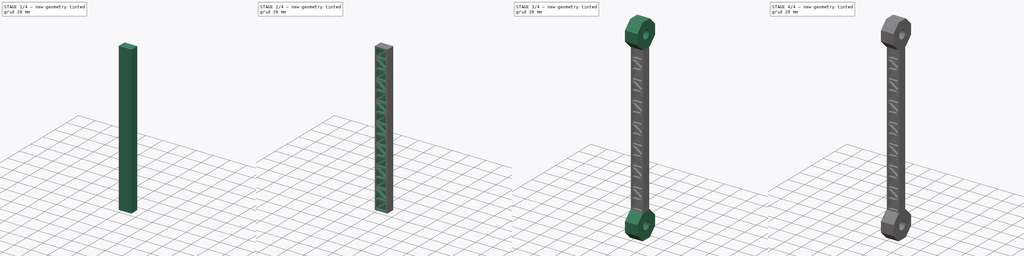
[diagram: build sequence overview — one tinted view per stage of 4, left to right]
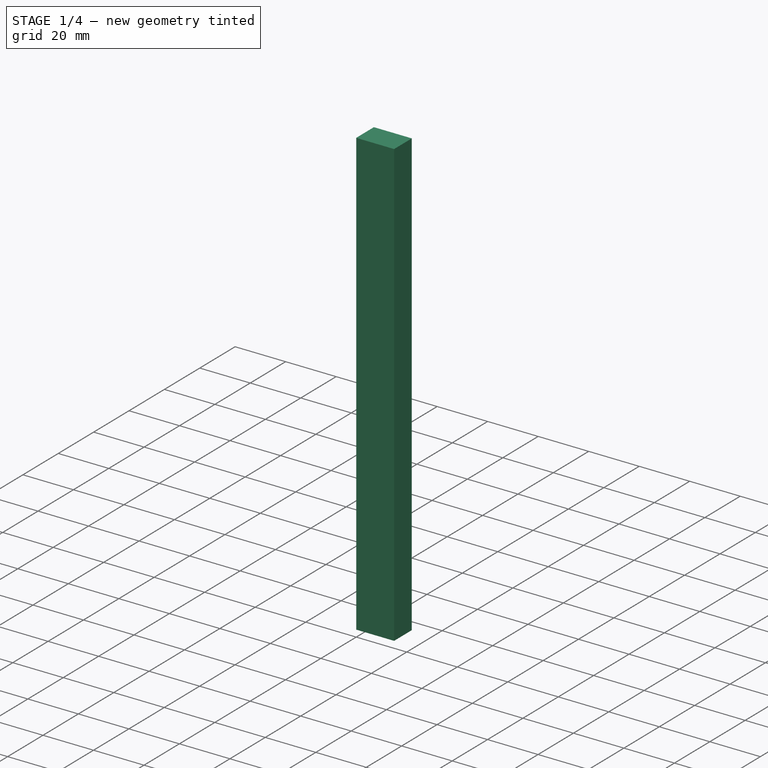
[diagram: stage 1 of 4 — iso view after this stage's code; geometry added in this stage tinted green]
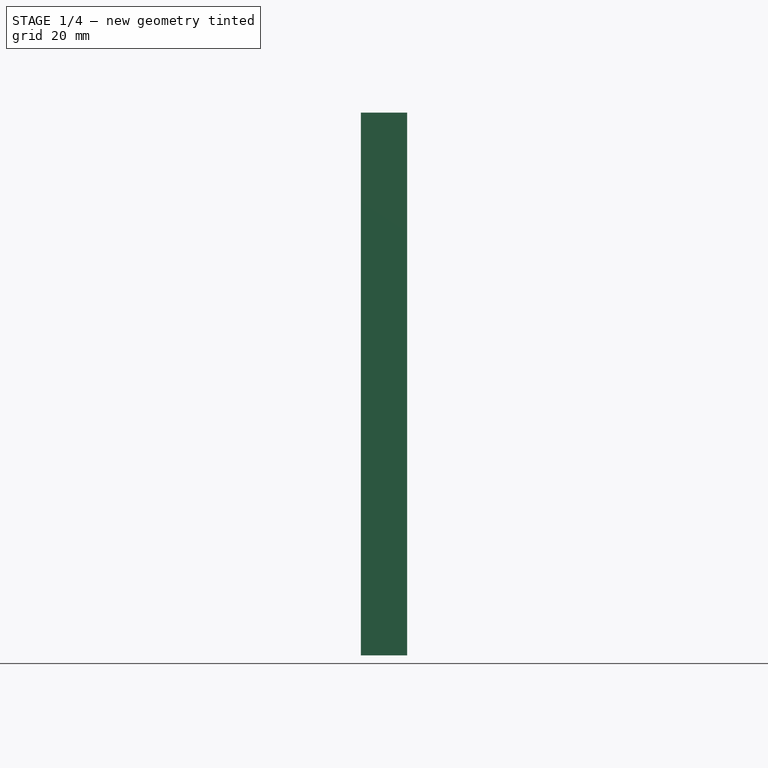
[diagram: stage 1 of 4 — front view after this stage's code; geometry added in this stage tinted green]
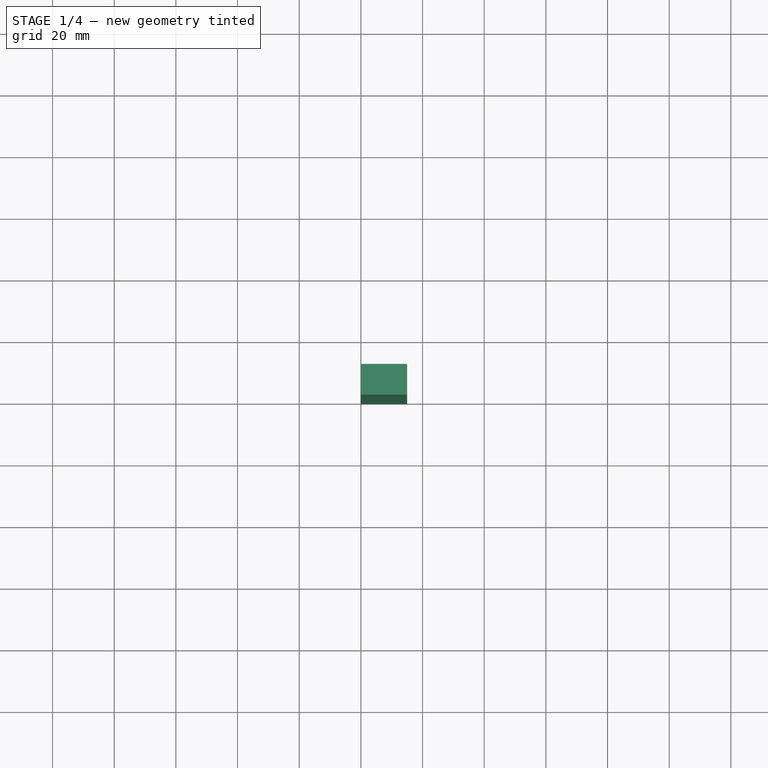
[diagram: stage 1 of 4 — top view after this stage's code; geometry added in this stage tinted green]
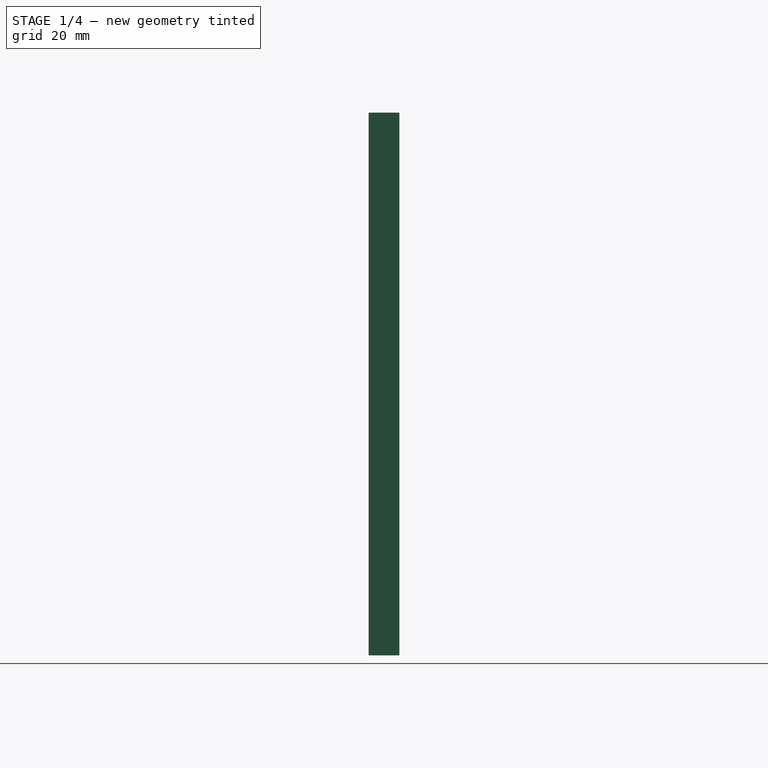
[diagram: stage 1 of 4 — right view after this stage's code; geometry added in this stage tinted green]
FCSTD DOCUMENT  (FreeCAD 0.19R24267 +148 (Git))
Label: windSensorHolder_edit
License: All rights reserved
LicenseURL: http://en.wikipedia.org/wiki/All_rights_reserved
objects: Sketcher::SketchObject×6, PartDesign::Pocket×4, PartDesign::Pad×2, PartDesign::LinearPattern×2, PartDesign::Chamfer×2, PartDesign::Body×1
note: 25 computed .brp shape members not serialized (recipe doc carries the construction recipe); baked Part::Feature solids carry a one-line shape summary decoded from their .brp

FEATURE [Sketcher::SketchObject] Sketch
  FullyConstrained = true
  MapMode = 5
  Support = -> [XY_Plane]
  sketch-geometry (4):
    g0: LineSegment StartX=0 StartY=0 StartZ=0 EndX=15 EndY=0 EndZ=0
    g1: LineSegment StartX=15 StartY=0 StartZ=0 EndX=15 EndY=10 EndZ=0
    g2: LineSegment StartX=15 StartY=10 StartZ=0 EndX=0 EndY=10 EndZ=0
    g3: LineSegment StartX=0 StartY=10 StartZ=0 EndX=0 EndY=0 EndZ=0
  constraints (11):
    c: Coincident(g0,g1)
    c: Coincident(g1,g2)
    c: Coincident(g2,g3)
    c: Coincident(g3,g0)
    c: Horizontal(g0)
    c: Horizontal(g2)
    c: Vertical(g1)
    c: Vertical(g3)
    c: Coincident(g0,g-1)
    c: DistanceX(g2,g2) = 15
    c: DistanceY(g1,g1) = 10
FEATURE [PartDesign::Pad] Pad
  Direction = (1,1,1)
  Length = 176
  Length2 = 100
  Profile = -> Sketch
  Type = 0
FEATURE [Sketcher::SketchObject] Sketch001
  FullyConstrained = true
  MapMode = 5
  Placement = pos=(0,10,0) rot=(0,0.707107,0.707107;3.14159rad)
  Support = -> [Pad]
  sketch-geometry (22):
    g0: LineSegment StartX=-13 StartY=1.5 StartZ=0 EndX=-2 EndY=1.5 EndZ=0
    g1: LineSegment StartX=-2 StartY=1.5 StartZ=0 EndX=-2 EndY=11.5 EndZ=0
    g2: LineSegment StartX=-2 StartY=11.5 StartZ=0 EndX=-13 EndY=11.5 EndZ=0
    g3: LineSegment StartX=-13 StartY=11.5 StartZ=0 EndX=-13 EndY=1.5 EndZ=0
    g4: LineSegment StartX=-2 StartY=1.5 StartZ=0 EndX=-13 EndY=1.5 EndZ=0
    g5: LineSegment StartX=-13 StartY=1.5 StartZ=0 EndX=-2 EndY=9.5 EndZ=0
    g6: LineSegment StartX=-2 StartY=9.5 StartZ=0 EndX=-2 EndY=1.5 EndZ=0
    g7: LineSegment StartX=-13 StartY=11.5 StartZ=0 EndX=-13 EndY=3.5 EndZ=0
    g8: LineSegment StartX=-13 StartY=11.5 StartZ=0 EndX=-2 EndY=11.5 EndZ=0
    g9: LineSegment StartX=-13 StartY=3.5 StartZ=0 EndX=-2 EndY=11.5 EndZ=0
    g10: LineSegment StartX=-2 StartY=13 StartZ=0 EndX=-13 EndY=13 EndZ=0
    g11: LineSegment StartX=-13 StartY=13 StartZ=0 EndX=-13 EndY=23 EndZ=0
    g12: LineSegment StartX=-13 StartY=23 StartZ=0 EndX=-2 EndY=23 EndZ=0
    g13: LineSegment StartX=-2 StartY=23 StartZ=0 EndX=-2 EndY=13 EndZ=0
    g14: LineSegment StartX=-2 StartY=11.5 StartZ=0 EndX=-2 EndY=13 EndZ=0
    g15: LineSegment StartX=-13 StartY=11.5 StartZ=0 EndX=-13 EndY=13 EndZ=0
    g16: LineSegment StartX=-2 StartY=13 StartZ=0 EndX=-13 EndY=21 EndZ=0
    g17: LineSegment StartX=-13 StartY=21 StartZ=0 EndX=-13 EndY=13 EndZ=0
    g18: LineSegment StartX=-13 StartY=13 StartZ=0 EndX=-2 EndY=13 EndZ=0
    g19: LineSegment StartX=-13 StartY=23 StartZ=0 EndX=-2 EndY=23 EndZ=0
    g20: LineSegment StartX=-2 StartY=23 StartZ=0 EndX=-2 EndY=15 EndZ=0
    g21: LineSegment StartX=-2 StartY=15 StartZ=0 EndX=-13 EndY=23 EndZ=0
  constraints (56):
    c: Coincident(g0,g1)
    c: Coincident(g1,g2)
    c: Coincident(g2,g3)
    c: Coincident(g3,g0)
    c: Horizontal(g0)
    c: Horizontal(g2)
    c: Vertical(g1)
    c: Vertical(g3)
    c: DistanceY(g1,g1) = 10
    c: DistanceY(g-1,g0) = 1.5
    c: DistanceX(g0,g-1) = 2
    c: DistanceX(g2,g2) = 11
    c: Coincident(g4,g0)
    c: Coincident(g4,g0)
    c: Coincident(g5,g4)
    c: PointOnObject(g5,g1)
    c: Coincident(g6,g5)
    c: Coincident(g6,g4)
    c: Coincident(g7,g2)
    c: PointOnObject(g7,g3)
    c: Coincident(g8,g7)
    c: Coincident(g8,g1)
    c: Coincident(g9,g7)
    c: Coincident(g9,g8)
    c: Equal(g5,g9)
    c: DistanceY(g5,g8) = 2
    c: Coincident(g10,g11)
    c: Coincident(g11,g12)
    c: Coincident(g12,g13)
    c: Coincident(g13,g10)
    c: Horizontal(g10)
    c: Horizontal(g12)
    c: Vertical(g11)
    c: Vertical(g13)
    c: Coincident(g14,g8)
    c: Coincident(g14,g10)
    c: Vertical(g14)
    c: Coincident(g15,g7)
    c: Coincident(g15,g10)
    c: Vertical(g15)
    c: DistanceY(g13,g13) = 10
    c: DistanceY(g14,g14) = 1.5
    c: Coincident(g16,g10)
    c: PointOnObject(g16,g11)
    c: Coincident(g17,g16)
    c: Coincident(g17,g10)
    c: Coincident(g18,g17)
    c: Coincident(g18,g16)
    c: Coincident(g19,g11)
    c: Coincident(g19,g12)
    c: Coincident(g20,g19)
    c: PointOnObject(g20,g13)
    c: Coincident(g21,g20)
    c: Coincident(g21,g19)
    c: Equal(g21,g16)
    c: Equal(g16,g9)
FEATURE [PartDesign::Pocket] Pocket
  BaseFeature = -> Pad
  Length = 3
  Length2 = 100
  Profile = -> Sketch001
  Type = 0
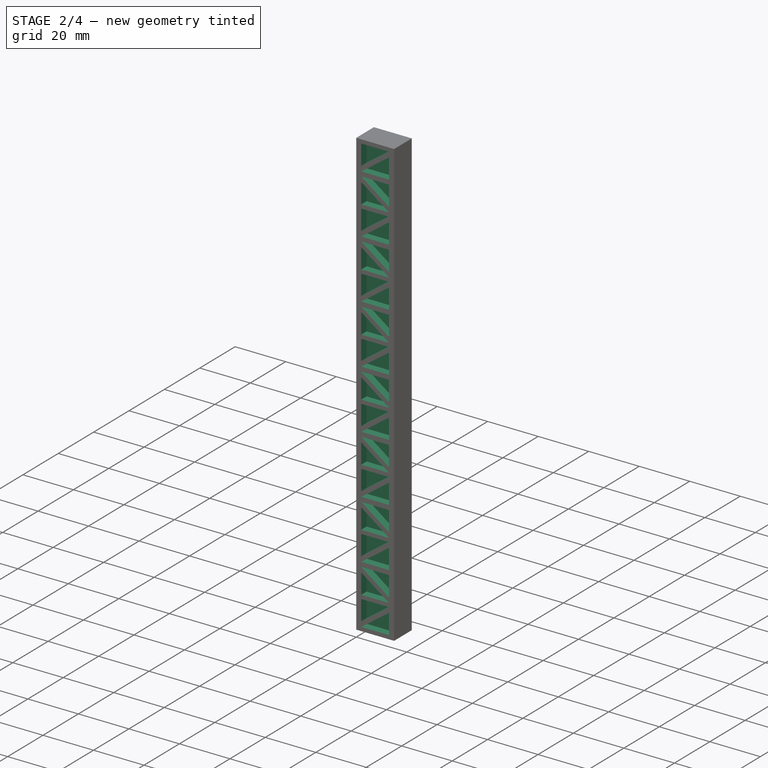
[diagram: stage 2 of 4 — iso view after this stage's code; geometry added in this stage tinted green]
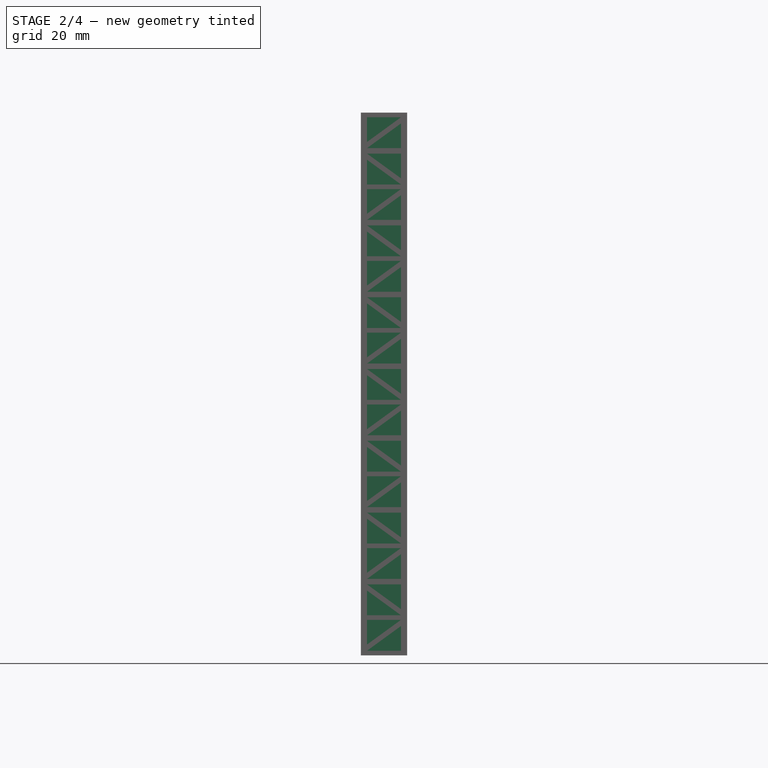
[diagram: stage 2 of 4 — front view after this stage's code; geometry added in this stage tinted green]
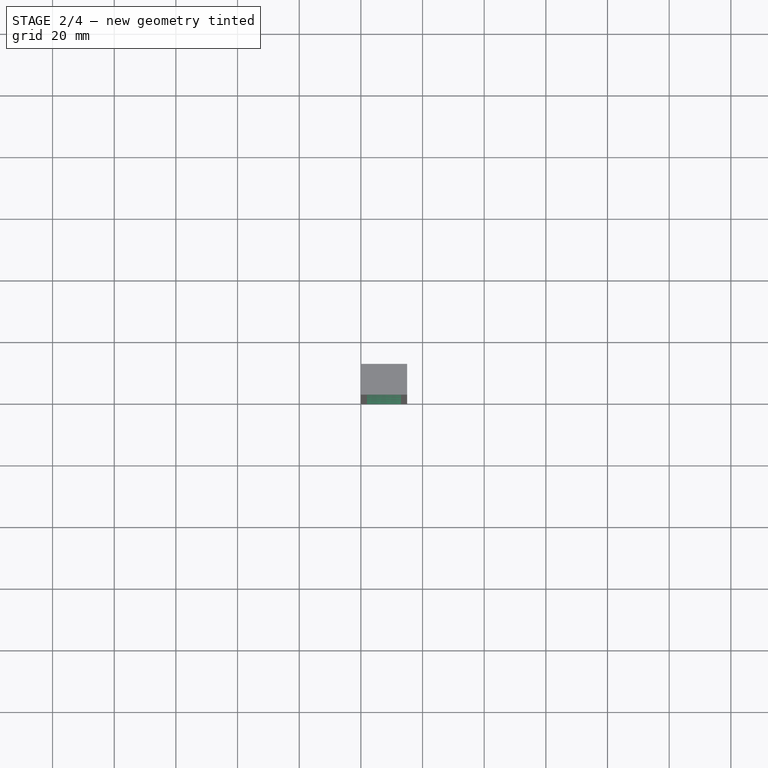
[diagram: stage 2 of 4 — top view after this stage's code; geometry added in this stage tinted green]
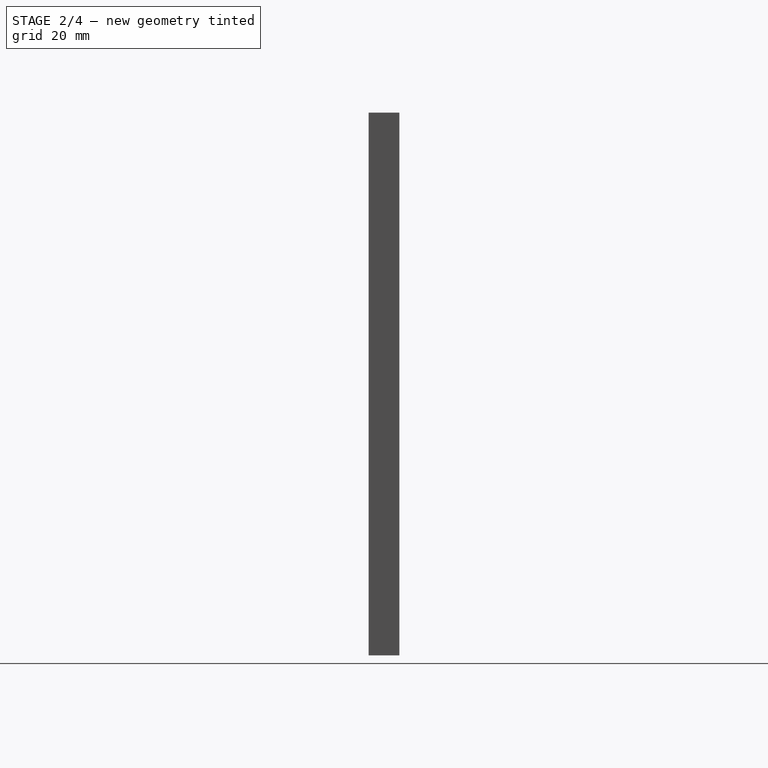
[diagram: stage 2 of 4 — right view after this stage's code; geometry added in this stage tinted green]
FEATURE [PartDesign::LinearPattern] LinearPattern
  BaseFeature = -> Pocket
  Direction = -> Z_Axis
  Length = 163.01
  Occurrences = 8
  Originals = -> [Pocket]
FEATURE [Sketcher::SketchObject] Sketch002
  FullyConstrained = true
  MapMode = 5
  Placement = pos=(0,0,0) rot=(1,0,0;1.5708rad)
  Support = -> [LinearPattern]
  sketch-geometry (22):
    g0: LineSegment StartX=2 StartY=1.5 StartZ=0 EndX=13 EndY=1.5 EndZ=0
    g1: LineSegment StartX=13 StartY=1.5 StartZ=0 EndX=13 EndY=11.5 EndZ=0
    g2: LineSegment StartX=13 StartY=11.5 StartZ=0 EndX=2 EndY=11.5 EndZ=0
    g3: LineSegment StartX=2 StartY=11.5 StartZ=0 EndX=2 EndY=1.5 EndZ=0
    g4: LineSegment StartX=13 StartY=1.5 StartZ=0 EndX=2 EndY=1.5 EndZ=0
    g5: LineSegment StartX=2 StartY=1.5 StartZ=0 EndX=13 EndY=9.5 EndZ=0
    g6: LineSegment StartX=13 StartY=9.5 StartZ=0 EndX=13 EndY=1.5 EndZ=0
    g7: LineSegment StartX=2 StartY=11.5 StartZ=0 EndX=2 EndY=3.5 EndZ=0
    g8: LineSegment StartX=2 StartY=11.5 StartZ=0 EndX=13 EndY=11.5 EndZ=0
    g9: LineSegment StartX=2 StartY=3.5 StartZ=0 EndX=13 EndY=11.5 EndZ=0
    g10: LineSegment StartX=13 StartY=13 StartZ=0 EndX=2 EndY=13 EndZ=0
    g11: LineSegment StartX=2 StartY=13 StartZ=0 EndX=2 EndY=23 EndZ=0
    g12: LineSegment StartX=2 StartY=23 StartZ=0 EndX=13 EndY=23 EndZ=0
    g13: LineSegment StartX=13 StartY=23 StartZ=0 EndX=13 EndY=13 EndZ=0
    g14: LineSegment StartX=13 StartY=11.5 StartZ=0 EndX=13 EndY=13 EndZ=0
    g15: LineSegment StartX=2 StartY=11.5 StartZ=0 EndX=2 EndY=13 EndZ=0
    g16: LineSegment StartX=13 StartY=13 StartZ=0 EndX=2 EndY=21 EndZ=0
    g17: LineSegment StartX=2 StartY=21 StartZ=0 EndX=2 EndY=13 EndZ=0
    g18: LineSegment StartX=2 StartY=13 StartZ=0 EndX=13 EndY=13 EndZ=0
    g19: LineSegment StartX=2 StartY=23 StartZ=0 EndX=13 EndY=23 EndZ=0
    g20: LineSegment StartX=13 StartY=23 StartZ=0 EndX=13 EndY=15 EndZ=0
    g21: LineSegment StartX=13 StartY=15 StartZ=0 EndX=2 EndY=23 EndZ=0
  constraints (56):
    c: Coincident(g0,g1)
    c: Coincident(g1,g2)
    c: Coincident(g2,g3)
    c: Coincident(g3,g0)
    c: Horizontal(g0)
    c: Horizontal(g2)
    c: Vertical(g1)
    c: Vertical(g3)
    c: DistanceY(g1,g1) = 10
    c: DistanceY(g-1,g0) = 1.5
    c: DistanceX(g2,g2) = 11
    c: Coincident(g4,g0)
    c: Coincident(g4,g0)
    c: Coincident(g5,g4)
    c: PointOnObject(g5,g1)
    c: Coincident(g6,g5)
    c: Coincident(g6,g4)
    c: Coincident(g7,g2)
    c: PointOnObject(g7,g3)
    c: Coincident(g8,g7)
    c: Coincident(g8,g1)
    c: Coincident(g9,g7)
    c: Coincident(g9,g8)
    c: Equal(g5,g9)
    c: DistanceY(g5,g8) = 2
    c: Coincident(g10,g11)
    c: Coincident(g11,g12)
    c: Coincident(g12,g13)
    c: Coincident(g13,g10)
    c: Horizontal(g10)
    c: Horizontal(g12)
    c: Vertical(g11)
    c: Vertical(g13)
    c: Coincident(g14,g8)
    c: Coincident(g14,g10)
    c: Vertical(g14)
    c: Coincident(g15,g7)
    c: Coincident(g15,g10)
    c: Vertical(g15)
    c: DistanceY(g13,g13) = 10
    c: DistanceY(g14,g14) = 1.5
    c: Coincident(g16,g10)
    c: PointOnObject(g16,g11)
    c: Coincident(g17,g16)
    c: Coincident(g17,g10)
    c: Coincident(g18,g17)
    c: Coincident(g18,g16)
    c: Coincident(g19,g11)
    c: Coincident(g19,g12)
    c: Coincident(g20,g19)
    c: PointOnObject(g20,g13)
    c: Coincident(g21,g20)
    c: Coincident(g21,g19)
    c: Equal(g21,g16)
    c: Equal(g16,g9)
    c: DistanceX(g-1,g4) = 2
FEATURE [PartDesign::Pocket] Pocket001
  BaseFeature = -> LinearPattern
  Length = 3
  Length2 = 100
  Profile = -> Sketch002
  Type = 0
FEATURE [PartDesign::LinearPattern] LinearPattern001
  BaseFeature = -> Pocket001
  Direction = -> Z_Axis
  Length = 163.01
  Occurrences = 8
  Originals = -> [Pocket001]
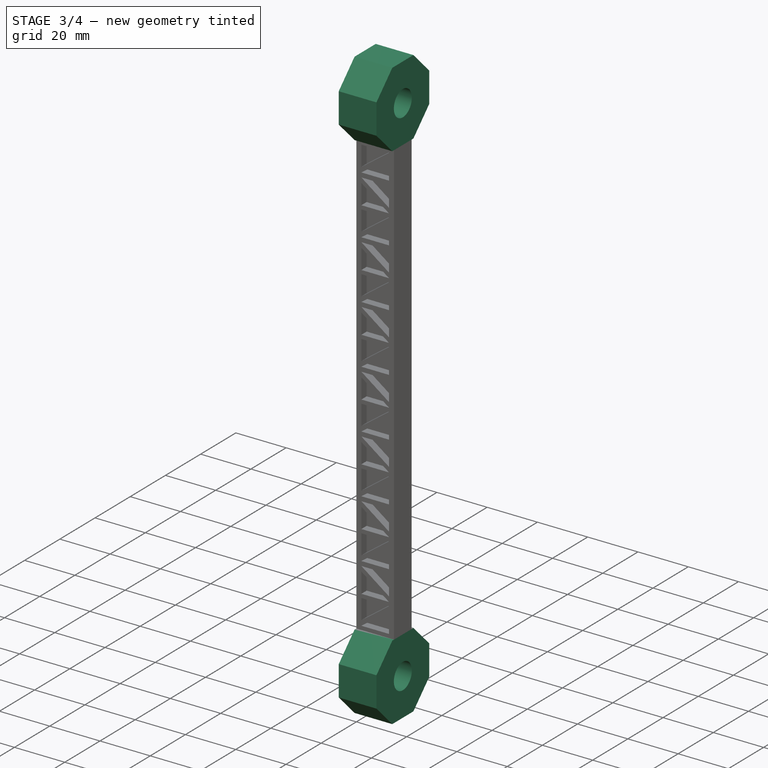
[diagram: stage 3 of 4 — iso view after this stage's code; geometry added in this stage tinted green]
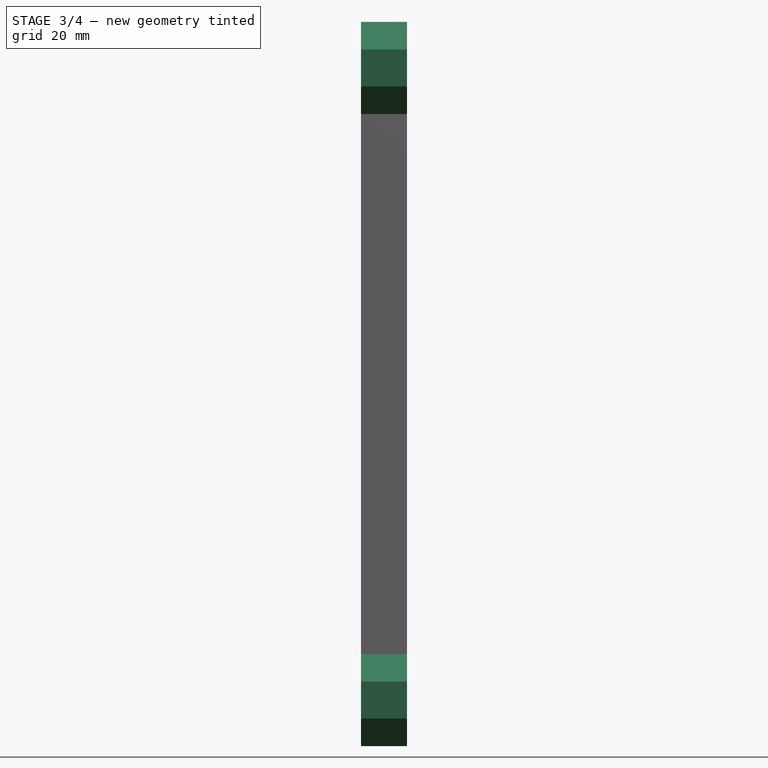
[diagram: stage 3 of 4 — front view after this stage's code; geometry added in this stage tinted green]
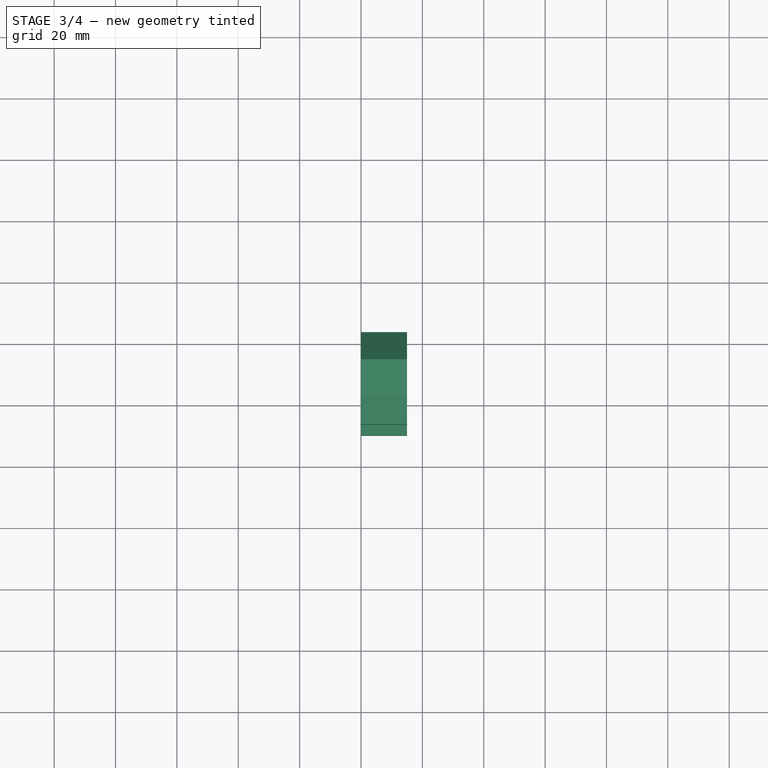
[diagram: stage 3 of 4 — top view after this stage's code; geometry added in this stage tinted green]
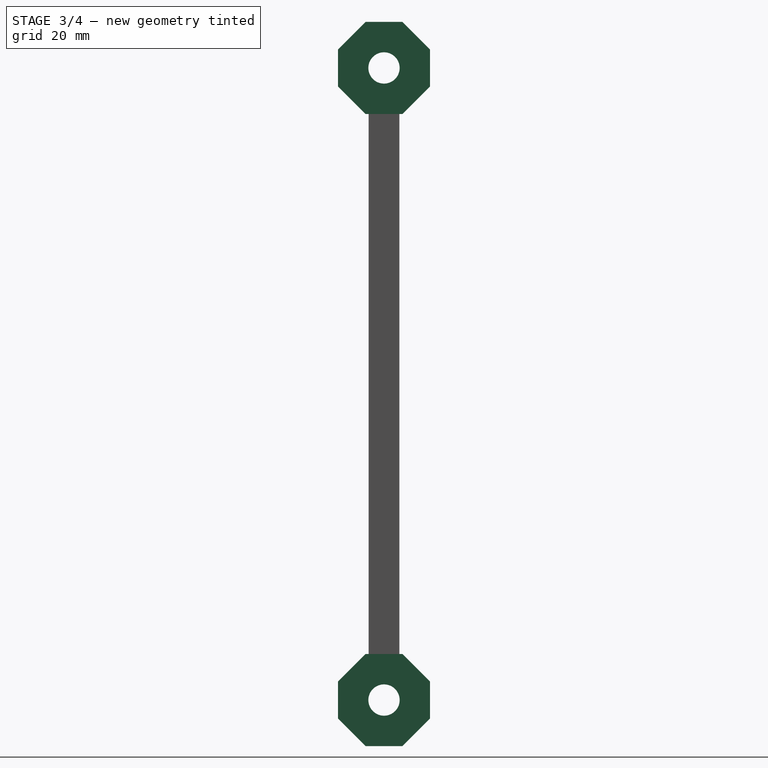
[diagram: stage 3 of 4 — right view after this stage's code; geometry added in this stage tinted green]
FEATURE [Sketcher::SketchObject] Sketch003
  FullyConstrained = true
  MapMode = 5
  Placement = pos=(0,0,0) rot=(0.57735,-0.57735,-0.57735;2.0944rad)
  Support = -> [LinearPattern001]
  sketch-geometry (10):
    g0: LineSegment StartX=-20 StartY=206 StartZ=0 EndX=10 EndY=206 EndZ=0
    g1: LineSegment StartX=10 StartY=206 StartZ=0 EndX=10 EndY=176 EndZ=0
    g2: LineSegment StartX=10 StartY=176 StartZ=0 EndX=-20 EndY=176 EndZ=0
    g3: LineSegment StartX=-20 StartY=176 StartZ=0 EndX=-20 EndY=206 EndZ=0
    g4: Circle CenterX=-5 CenterY=191 CenterZ=0 NormalX=0 NormalY=0 NormalZ=1 AngleXU=0 Radius=5.1
    g5: LineSegment StartX=-20 StartY=0 StartZ=0 EndX=10 EndY=0 EndZ=0
    g6: LineSegment StartX=10 StartY=0 StartZ=0 EndX=10 EndY=-30 EndZ=0
    g7: LineSegment StartX=10 StartY=-30 StartZ=0 EndX=-20 EndY=-30 EndZ=0
    g8: LineSegment StartX=-20 StartY=-30 StartZ=0 EndX=-20 EndY=0 EndZ=0
    g9: Circle CenterX=-5 CenterY=-15 CenterZ=0 NormalX=0 NormalY=0 NormalZ=1 AngleXU=0 Radius=5.1
  constraints (30):
    c: Coincident(g0,g1)
    c: Coincident(g1,g2)
    c: Coincident(g2,g3)
    c: Coincident(g3,g0)
    c: Horizontal(g0)
    c: Horizontal(g2)
    c: Vertical(g1)
    c: Vertical(g3)
    c: Equal(g1,g0)
    c: DistanceY(g-1,g1) = 176
    c: Radius(g4) = 5.1
    c: DistanceY(g1,g1) = 30
    c: DistanceY(g4,g0) = 15
    c: DistanceX(g0,g4) = 15
    c: DistanceX(g4,g-1) = 5
    c: Coincident(g5,g6)
    c: Coincident(g6,g7)
    c: Coincident(g7,g8)
    c: Coincident(g8,g5)
    c: Horizontal(g5)
    c: Horizontal(g7)
    c: Vertical(g6)
    c: Vertical(g8)
    c: PointOnObject(g5,g-1)
    c: Equal(g7,g6)
    c: Equal(g6,g1)
    c: Equal(g9,g4)
    c: DistanceX(g9,g6) = 15
    c: DistanceY(g6,g9) = 15
    c: DistanceX(g9,g-1) = 5
FEATURE [PartDesign::Pad] Pad001
  BaseFeature = -> LinearPattern001
  Direction = (1,1,1)
  Length = 15
  Length2 = 100
  Profile = -> Sketch003
  Reversed = true
  Type = 0
FEATURE [PartDesign::Chamfer] Chamfer
  Angle = 45
  Base = -> Pad001 [Edge403,Edge584,Edge222,Edge8,Edge2,Edge1,Edge5,Edge585]
  BaseFeature = -> Pad001
  ChamferType = 0
  FlipDirection = false
  Size = 9
  Size2 = 1
  SupportTransform = false
FEATURE [Sketcher::SketchObject] Sketch004
  FullyConstrained = true
  MapMode = 5
  Placement = pos=(0,-82.5,82.5) rot=(0,0.92388,0.382683;3.14159rad)
  Support = -> [Chamfer]
  sketch-geometry (1):
    g0: Circle CenterX=-7.5 CenterY=138.5 CenterZ=0 NormalX=0 NormalY=0 NormalZ=1 AngleXU=0 Radius=1.25
  constraints (3):
    c: DistanceX(g0,g-1) = 7.5
    c: DistanceY(g-1,g0) = 138.5
    c: Radius(g0) = 1.25
FEATURE [PartDesign::Pocket] Pocket002
  BaseFeature = -> Chamfer
  Length = 10
  Length2 = 100
  Profile = -> Sketch004
  Type = 0
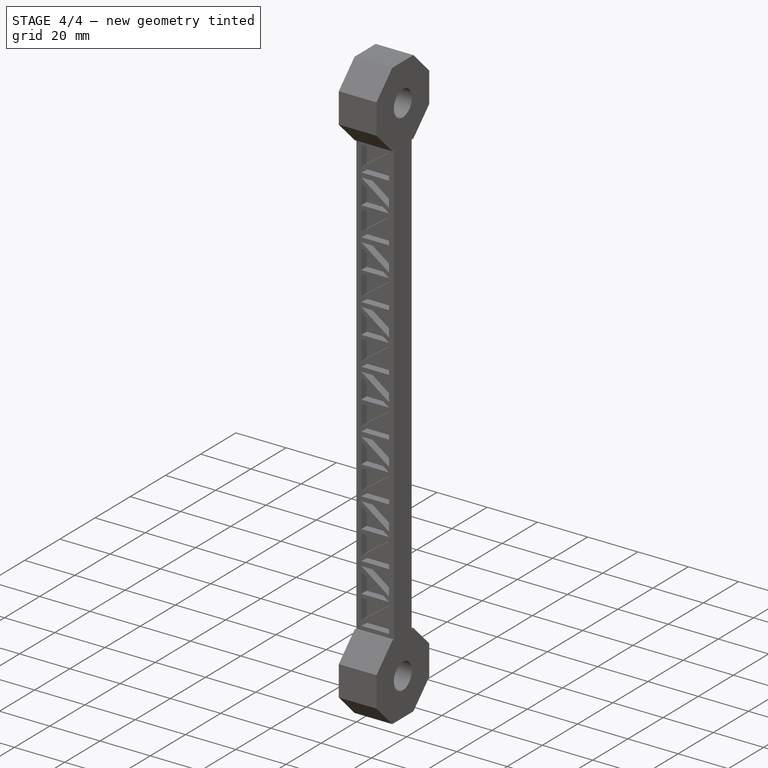
[diagram: stage 4 of 4 — iso view after this stage's code; geometry added in this stage tinted green]
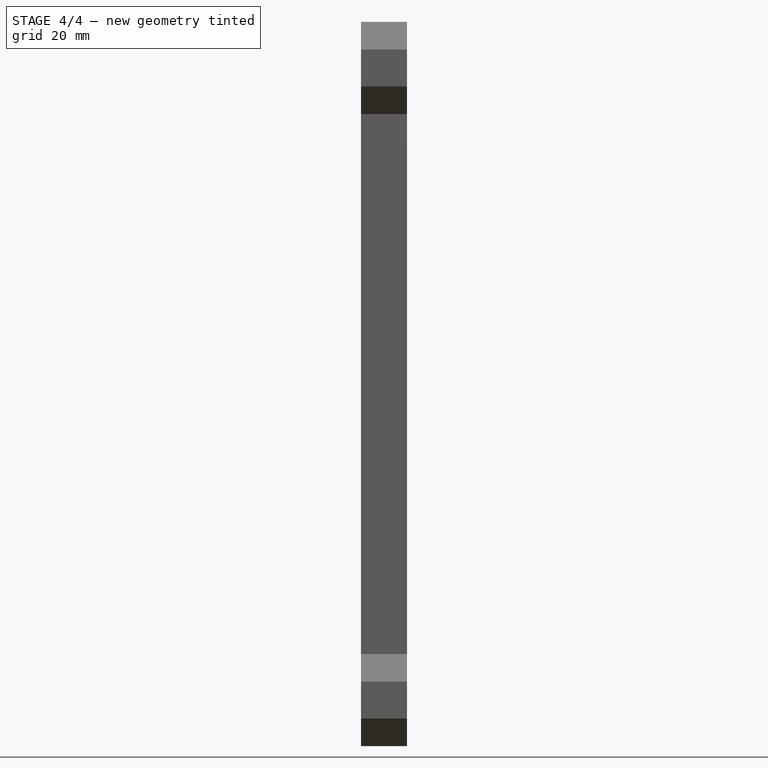
[diagram: stage 4 of 4 — front view after this stage's code; geometry added in this stage tinted green]
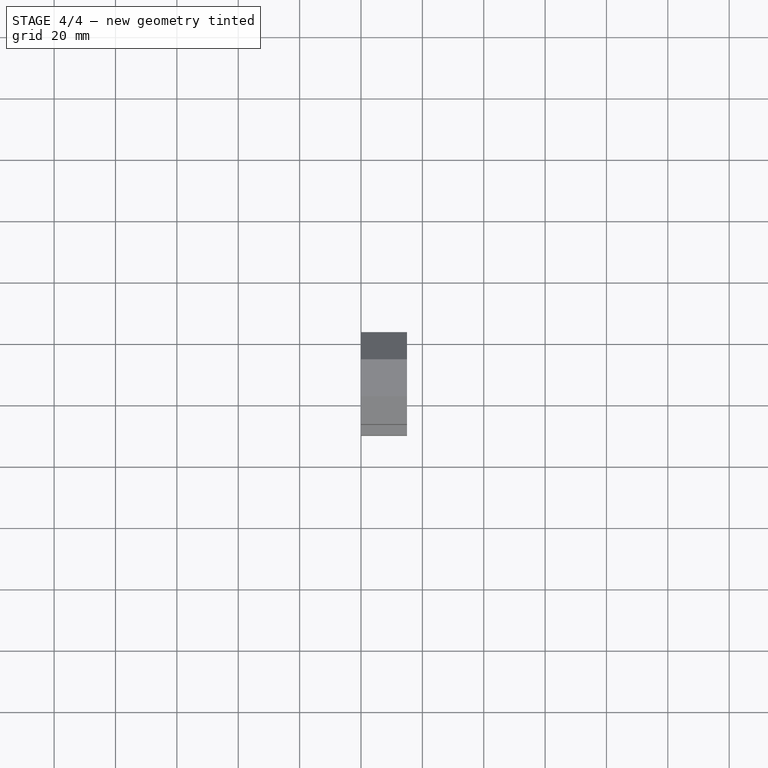
[diagram: stage 4 of 4 — top view after this stage's code; geometry added in this stage tinted green]
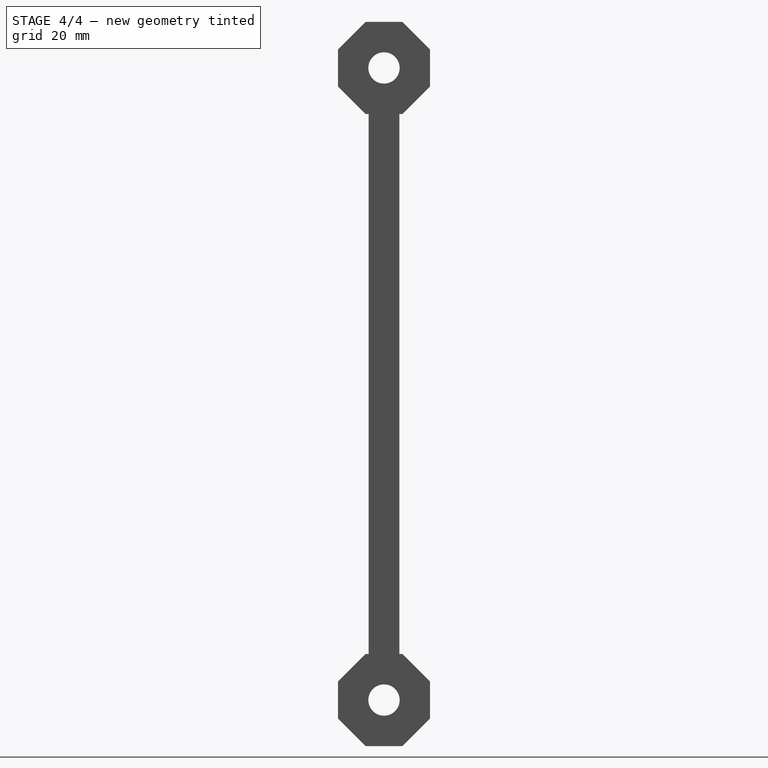
[diagram: stage 4 of 4 — right view after this stage's code; geometry added in this stage tinted green]
FEATURE [Sketcher::SketchObject] Sketch005
  FullyConstrained = true
  MapMode = 5
  Placement = pos=(0,20.5,-20.5) rot=(0,0.92388,0.382683;3.14159rad)
  Support = -> [Pocket002]
  sketch-geometry (1):
    g0: Circle CenterX=-7.5 CenterY=-7 CenterZ=0 NormalX=0 NormalY=0 NormalZ=1 AngleXU=0 Radius=1.25
  constraints (3):
    c: DistanceX(g0,g-1) = 7.5
    c: DistanceY(g0,g-1) = 7
    c: Radius(g0) = 1.25
FEATURE [PartDesign::Pocket] Pocket003
  BaseFeature = -> Pocket002
  Length = 10
  Length2 = 100
  Profile = -> Sketch005
  Type = 0
FEATURE [PartDesign::Chamfer] Chamfer001
  Angle = 45
  Base = -> Pocket003 [Edge610,Edge30]
  BaseFeature = -> Pocket003
  ChamferType = 0
  FlipDirection = false
  Size = 1.5
  Size2 = 1
  SupportTransform = false
FEATURE [PartDesign::Body] Body
  Group = -> [Sketch,Pad,Sketch001,Pocket,LinearPattern,Sketch002,Pocket001,LinearPattern001,Sketch003,Pad001,Chamfer,Sketch004,Pocket002,Sketch005,Pocket003,Chamfer001]
  Origin = -> Origin
  Tip = -> Chamfer001
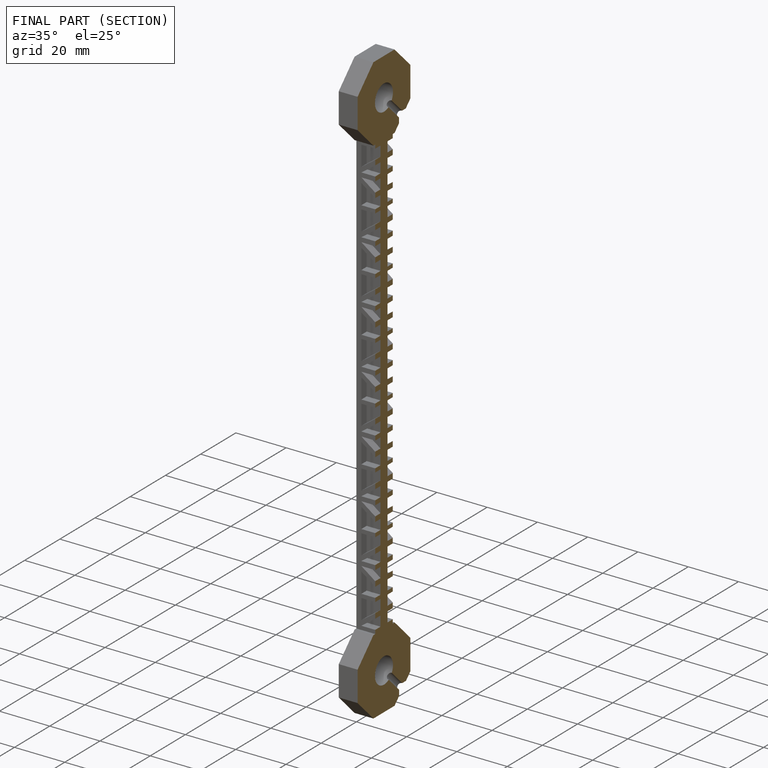
[diagram: finished part — half-section view (interior)]
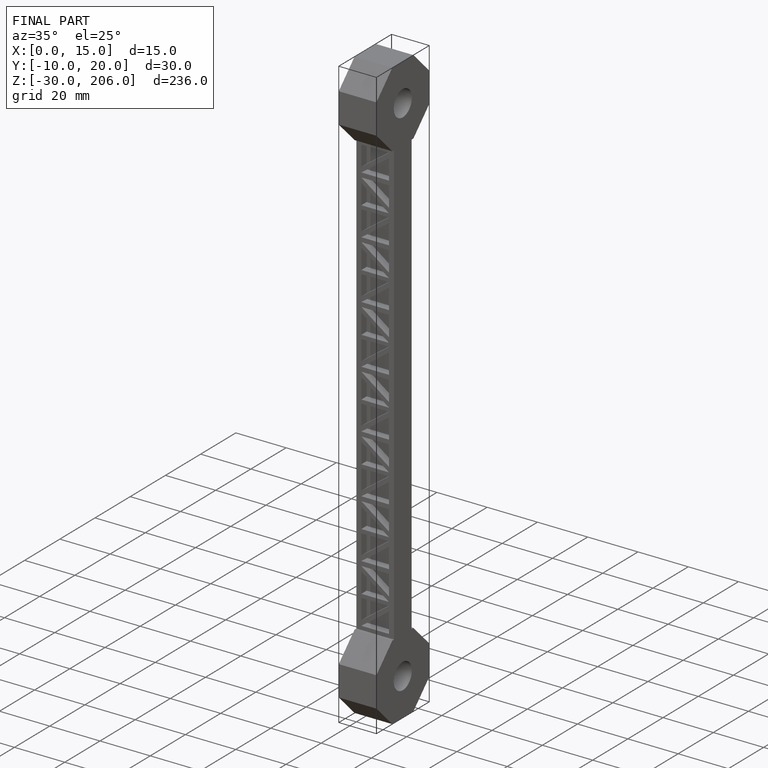
[diagram: finished part — iso view with bounding-box wireframe]
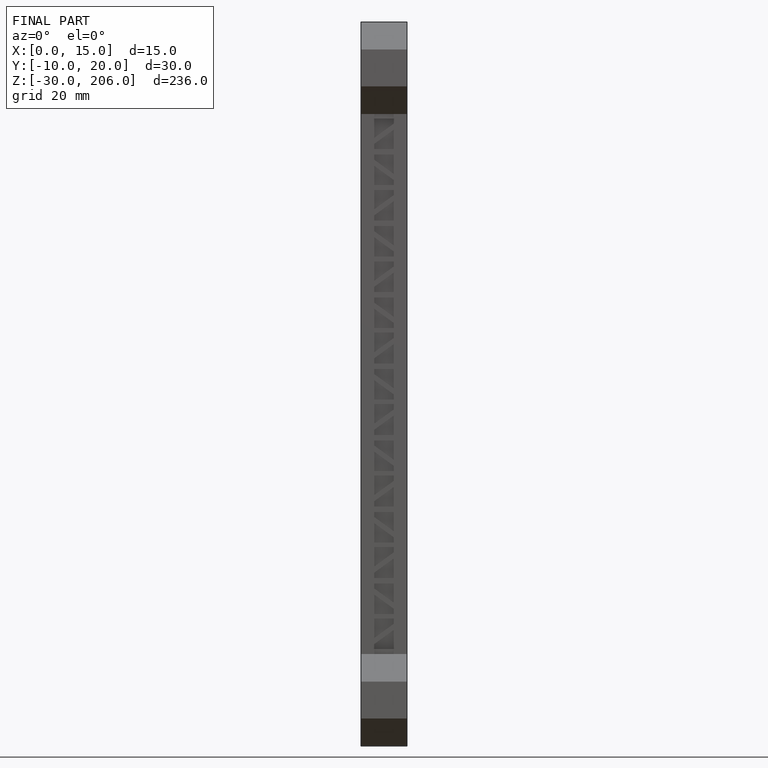
[diagram: finished part — front view with bounding-box wireframe]
